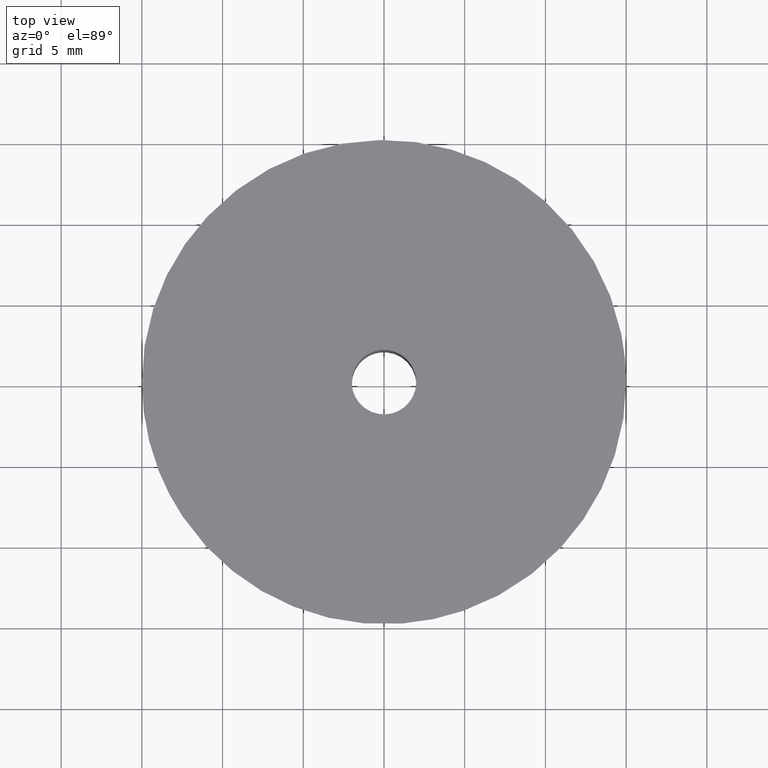
[diagram: clean part render]
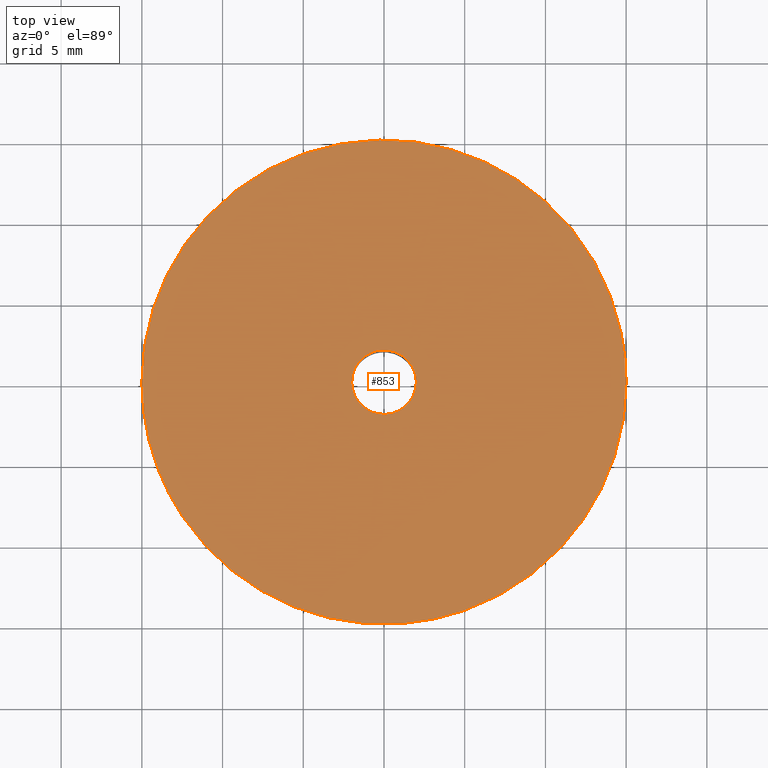
[diagram: same view with one face highlighted and labeled with its STEP entity id]
A machine part, top view. The second image highlights one B-rep face of the part: STEP entity #853.
In plain terms, the highlighted face is a freeform B-spline surface patch.
Its self-contained STEP definition (entity closure, byte-faithful):
#104=CARTESIAN_POINT('',(0.122093436056999,-1.996269819653264,16.0));
#105=VERTEX_POINT('',#104);
#111=CARTESIAN_POINT('',(2.0,0.0,16.0));
#112=VERTEX_POINT('',#111);
#113=CARTESIAN_POINT('',(2.0,0.0,16.0));
#114=CARTESIAN_POINT('',(1.999999999999999,-1.881415573638085,15.999999999999995));
#115=CARTESIAN_POINT('',(0.122093436056999,-1.996269819653264,16.0));
#123=(BOUNDED_CURVE()B_SPLINE_CURVE(2,(#113,#114,#115),.UNSPECIFIED.,.F.,.U.)B_SPLINE_CURVE_WITH_KNOTS((3,3),(0.500000000000000,0.739333277124436),.UNSPECIFIED.)CURVE()GEOMETRIC_REPRESENTATION_ITEM()RATIONAL_B_SPLINE_CURVE((1.0,0.719603624375408,0.976072716527199))REPRESENTATION_ITEM(''));
#124=EDGE_CURVE('',#112,#105,#123,.T.);
#126=CARTESIAN_POINT('',(-0.236068469328979,1.986019052725495,16.0));
#127=VERTEX_POINT('',#126);
#128=CARTESIAN_POINT('',(-0.236068469328979,1.986019052725495,16.000000000000004));
#129=CARTESIAN_POINT('',(-0.118448239319446,2.000000000000000,16.0));
#130=CARTESIAN_POINT('',(0.0,2.0,16.0));
#131=CARTESIAN_POINT('',(2.000000000000000,2.000000000000000,15.999999999999998));
#132=CARTESIAN_POINT('',(2.0,0.0,16.0));
#140=(BOUNDED_CURVE()B_SPLINE_CURVE(2,(#128,#129,#130,#131,#132),.UNSPECIFIED.,.F.,.U.)B_SPLINE_CURVE_WITH_KNOTS((3,2,3),(0.229562473513013,0.250000000000000,0.500000000000000),.UNSPECIFIED.)CURVE()GEOMETRIC_REPRESENTATION_ITEM()RATIONAL_B_SPLINE_CURVE((0.956026754182728,0.976055948330564,1.0,0.707106781186548,1.0))REPRESENTATION_ITEM(''));
#141=EDGE_CURVE('',#127,#112,#140,.T.);
#185=CARTESIAN_POINT('',(-2.0,0.0,16.0));
#186=VERTEX_POINT('',#185);
#187=CARTESIAN_POINT('',(-2.0,0.0,16.0));
#188=CARTESIAN_POINT('',(-2.000000000000000,1.776349051874881,15.999999999999998));
#189=CARTESIAN_POINT('',(-0.236068469328979,1.986019052725495,15.999999999999998));
#197=(BOUNDED_CURVE()B_SPLINE_CURVE(2,(#187,#188,#189),.UNSPECIFIED.,.F.,.U.)B_SPLINE_CURVE_WITH_KNOTS((3,3),(0.0,0.229562473513013),.UNSPECIFIED.)CURVE()GEOMETRIC_REPRESENTATION_ITEM()RATIONAL_B_SPLINE_CURVE((1.0,0.731050832855983,0.956026754182728))REPRESENTATION_ITEM(''));
#198=EDGE_CURVE('',#186,#127,#197,.T.);
#200=CARTESIAN_POINT('',(0.122093436056999,-1.996269819653264,16.0));
#201=CARTESIAN_POINT('',(0.061103699983748,-2.000000000000000,16.000000000000004));
#202=CARTESIAN_POINT('',(0.0,-2.0,16.0));
#203=CARTESIAN_POINT('',(-2.000000000000000,-2.000000000000000,15.999999999999998));
#204=CARTESIAN_POINT('',(-2.0,0.0,16.0));
#212=(BOUNDED_CURVE()B_SPLINE_CURVE(2,(#200,#201,#202,#203,#204),.UNSPECIFIED.,.F.,.U.)B_SPLINE_CURVE_WITH_KNOTS((3,2,3),(0.739333277124436,0.750000000000000,1.0),.UNSPECIFIED.)CURVE()GEOMETRIC_REPRESENTATION_ITEM()RATIONAL_B_SPLINE_CURVE((0.976072716527199,0.987503156811140,1.0,0.707106781186548,1.0))REPRESENTATION_ITEM(''));
#213=EDGE_CURVE('',#105,#186,#212,.T.);
#461=CARTESIAN_POINT('',(1.176877674963126,-14.953758607669529,15.999993339557220));
#462=VERTEX_POINT('',#461);
#468=CARTESIAN_POINT('',(-13.947966128556700,-5.518529929664375,15.999992715519070));
#469=VERTEX_POINT('',#468);
#470=CARTESIAN_POINT('',(1.176877674963126,-14.953758607669529,15.999993339557214));
#471=CARTESIAN_POINT('',(0.589347183664466,-14.999997957930429,15.999993322963764));
#472=CARTESIAN_POINT('',(-0.000000038720543,-14.999997992641530,15.999993305459631));
#473=CARTESIAN_POINT('',(-10.196612230384220,-14.999998593196917,15.999993002611232));
#474=CARTESIAN_POINT('',(-13.947966128556695,-5.518529929664375,15.999992715519074));
#482=(BOUNDED_CURVE()B_SPLINE_CURVE(2,(#470,#471,#472,#473,#474),.UNSPECIFIED.,.F.,.U.)B_SPLINE_CURVE_WITH_KNOTS((3,2,3),(0.736331399193141,0.750000000000000,0.937532605507927),.UNSPECIFIED.)CURVE()GEOMETRIC_REPRESENTATION_ITEM()RATIONAL_B_SPLINE_CURVE((0.969723561859888,0.983986238052012,1.0,0.780291886161240,0.890203252637798))REPRESENTATION_ITEM(''));
#483=EDGE_CURVE('',#462,#469,#482,.T.);
#535=CARTESIAN_POINT('',(-15.0,0.0,16.0));
#536=VERTEX_POINT('',#535);
#537=CARTESIAN_POINT('',(-13.947966128556695,-5.518529929664375,15.999992715519074));
#538=CARTESIAN_POINT('',(-14.999998941627572,-2.859542634704094,15.999996357759541));
#539=CARTESIAN_POINT('',(-15.0,0.0,16.0));
#547=(BOUNDED_CURVE()B_SPLINE_CURVE(2,(#537,#538,#539),.UNSPECIFIED.,.F.,.U.)B_SPLINE_CURVE_WITH_KNOTS((3,3),(0.937532605507927,1.0),.UNSPECIFIED.)CURVE()GEOMETRIC_REPRESENTATION_ITEM()RATIONAL_B_SPLINE_CURVE((0.890203252637798,0.926814895025307,1.0))REPRESENTATION_ITEM(''));
#548=EDGE_CURVE('',#469,#536,#547,.T.);
#550=CARTESIAN_POINT('',(15.0,0.0,16.0));
#551=VERTEX_POINT('',#550);
#552=CARTESIAN_POINT('',(-15.0,0.0,16.0));
#553=CARTESIAN_POINT('',(-14.999999999999996,14.999999999999996,16.0));
#554=CARTESIAN_POINT('',(0.0,15.0,16.0));
#555=CARTESIAN_POINT('',(14.999999999999996,14.999999999999996,16.0));
#556=CARTESIAN_POINT('',(15.0,0.0,16.0));
#564=(BOUNDED_CURVE()B_SPLINE_CURVE(2,(#552,#553,#554,#555,#556),.UNSPECIFIED.,.F.,.U.)B_SPLINE_CURVE_WITH_KNOTS((3,2,3),(0.0,0.250000000000000,0.500000000000000),.UNSPECIFIED.)CURVE()GEOMETRIC_REPRESENTATION_ITEM()RATIONAL_B_SPLINE_CURVE((1.0,0.707106781186547,1.0,0.707106781186547,1.0))REPRESENTATION_ITEM(''));
#565=EDGE_CURVE('',#536,#551,#564,.T.);
#567=CARTESIAN_POINT('',(15.0,0.0,16.0));
#568=CARTESIAN_POINT('',(14.999999918348569,-13.865864334202168,15.999996669778607));
#569=CARTESIAN_POINT('',(1.176877674963126,-14.953758607669529,15.999993339557214));
#577=(BOUNDED_CURVE()B_SPLINE_CURVE(2,(#567,#568,#569),.UNSPECIFIED.,.F.,.U.)B_SPLINE_CURVE_WITH_KNOTS((3,3),(0.500000000000000,0.736331399193141),.UNSPECIFIED.)CURVE()GEOMETRIC_REPRESENTATION_ITEM()RATIONAL_B_SPLINE_CURVE((1.0,0.723120543134536,0.969723561859888))REPRESENTATION_ITEM(''));
#578=EDGE_CURVE('',#551,#462,#577,.T.);
#836=CARTESIAN_POINT('',(16.498499941854181,-16.498185655568541,16.0));
#837=CARTESIAN_POINT('',(-16.498500746516889,-16.498185655568541,16.0));
#838=CARTESIAN_POINT('',(16.498499941854181,16.498485794757311,16.0));
#839=CARTESIAN_POINT('',(-16.498500746516889,16.498485794757311,16.0));
#840=B_SPLINE_SURFACE_WITH_KNOTS('',1,1,((#836,#838),(#837,#839)),.UNSPECIFIED.,.F.,.F.,.U.,(2,2),(2,2),(0.0,32.997000688371060),(0.0,32.996671450325849),.UNSPECIFIED.);
#841=ORIENTED_EDGE('',*,*,#548,.F.);
#842=ORIENTED_EDGE('',*,*,#483,.F.);
#843=ORIENTED_EDGE('',*,*,#578,.F.);
#844=ORIENTED_EDGE('',*,*,#565,.F.);
#845=EDGE_LOOP('',(#841,#842,#843,#844));
#846=FACE_OUTER_BOUND('',#845,.T.);
#847=ORIENTED_EDGE('',*,*,#124,.T.);
#848=ORIENTED_EDGE('',*,*,#213,.T.);
#849=ORIENTED_EDGE('',*,*,#198,.T.);
#850=ORIENTED_EDGE('',*,*,#141,.T.);
#851=EDGE_LOOP('',(#847,#848,#849,#850));
#852=FACE_BOUND('',#851,.T.);
#853=ADVANCED_FACE('',(#846,#852),#840,.F.);